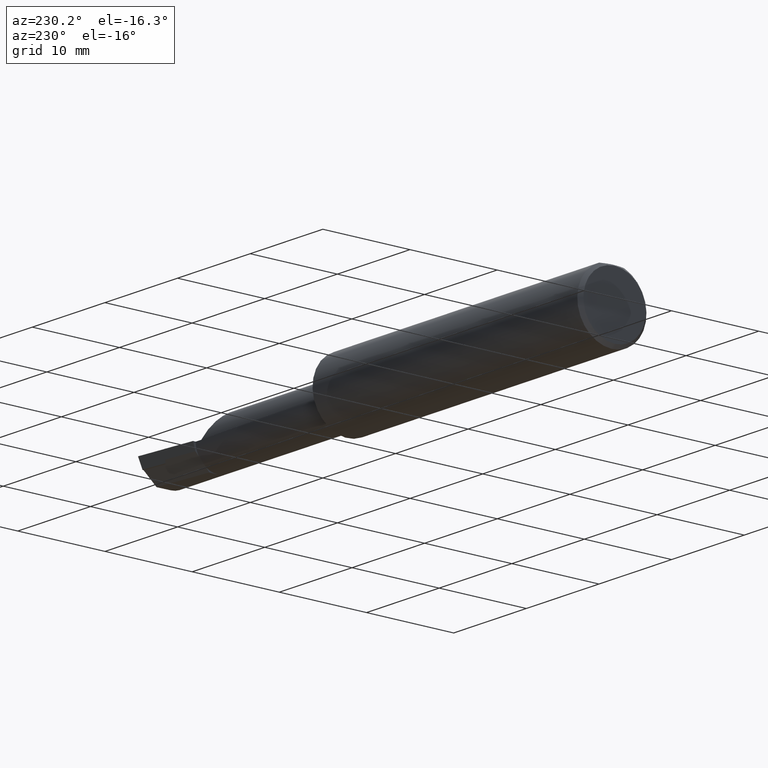
[diagram: clean part render]
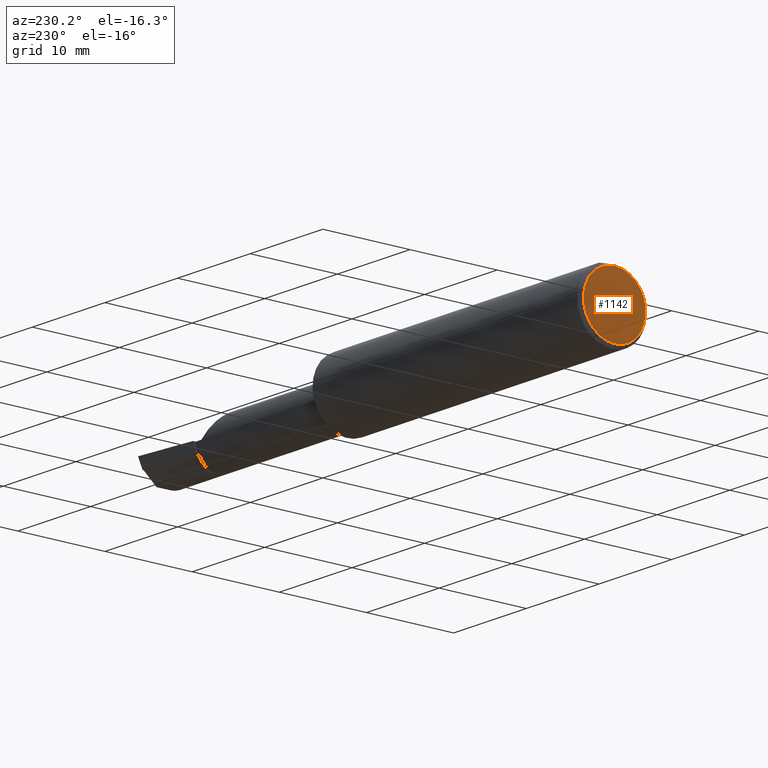
[diagram: same view with one face highlighted and labeled with its STEP entity id]
A machine part, auxiliary view. The second image highlights one B-rep face of the part: STEP entity #1142.
In plain terms, the highlighted planar face has unit normal (1, 0, 0).
Its self-contained STEP definition (entity closure, byte-faithful):
#23 = EDGE_CURVE ( 'NONE', #228, #646, #951, .T. ) ;
#59 = DIRECTION ( 'NONE',  ( -1.000000000000000000, -0.000000000000000000, -0.000000000000000000 ) ) ;
#78 = PLANE ( 'NONE',  #553 ) ;
#94 = EDGE_LOOP ( 'NONE', ( #660, #130 ) ) ;
#130 = ORIENTED_EDGE ( 'NONE', *, *, #23, .T. ) ;
#197 = DIRECTION ( 'NONE',  ( 0.000000000000000000, 0.000000000000000000, -1.000000000000000000 ) ) ;
#215 = AXIS2_PLACEMENT_3D ( 'NONE', #545, #59, #1009 ) ;
#228 = VERTEX_POINT ( 'NONE', #432 ) ;
#432 = CARTESIAN_POINT ( 'NONE',  ( 0.000000000000000000, 4.622355864573735845E-16, 3.583940000000000570 ) ) ;
#478 = FACE_OUTER_BOUND ( 'NONE', #94, .T. ) ;
#479 = DIRECTION ( 'NONE',  ( -1.000000000000000000, -0.000000000000000000, -0.000000000000000000 ) ) ;
#545 = CARTESIAN_POINT ( 'NONE',  ( 0.000000000000000000, 0.000000000000000000, 0.000000000000000000 ) ) ;
#553 = AXIS2_PLACEMENT_3D ( 'NONE', #1139, #954, #1041 ) ;
#646 = VERTEX_POINT ( 'NONE', #890 ) ;
#660 = ORIENTED_EDGE ( 'NONE', *, *, #1074, .T. ) ;
#854 = CIRCLE ( 'NONE', #215, 3.583940000000000570 ) ;
#890 = CARTESIAN_POINT ( 'NONE',  ( 0.000000000000000000, 0.000000000000000000, -3.583940000000000570 ) ) ;
#951 = CIRCLE ( 'NONE', #986, 3.583940000000000570 ) ;
#954 = DIRECTION ( 'NONE',  ( 1.000000000000000000, 0.000000000000000000, 0.000000000000000000 ) ) ;
#986 = AXIS2_PLACEMENT_3D ( 'NONE', #1145, #479, #197 ) ;
#1009 = DIRECTION ( 'NONE',  ( 0.000000000000000000, 0.000000000000000000, -1.000000000000000000 ) ) ;
#1041 = DIRECTION ( 'NONE',  ( 0.000000000000000000, 0.000000000000000000, -1.000000000000000000 ) ) ;
#1074 = EDGE_CURVE ( 'NONE', #646, #228, #854, .T. ) ;
#1139 = CARTESIAN_POINT ( 'NONE',  ( 0.000000000000000000, 0.000000000000000000, 0.000000000000000000 ) ) ;
#1142 = ADVANCED_FACE ( 'NONE', ( #478 ), #78, .F. ) ;
#1145 = CARTESIAN_POINT ( 'NONE',  ( 0.000000000000000000, 0.000000000000000000, 0.000000000000000000 ) ) ;